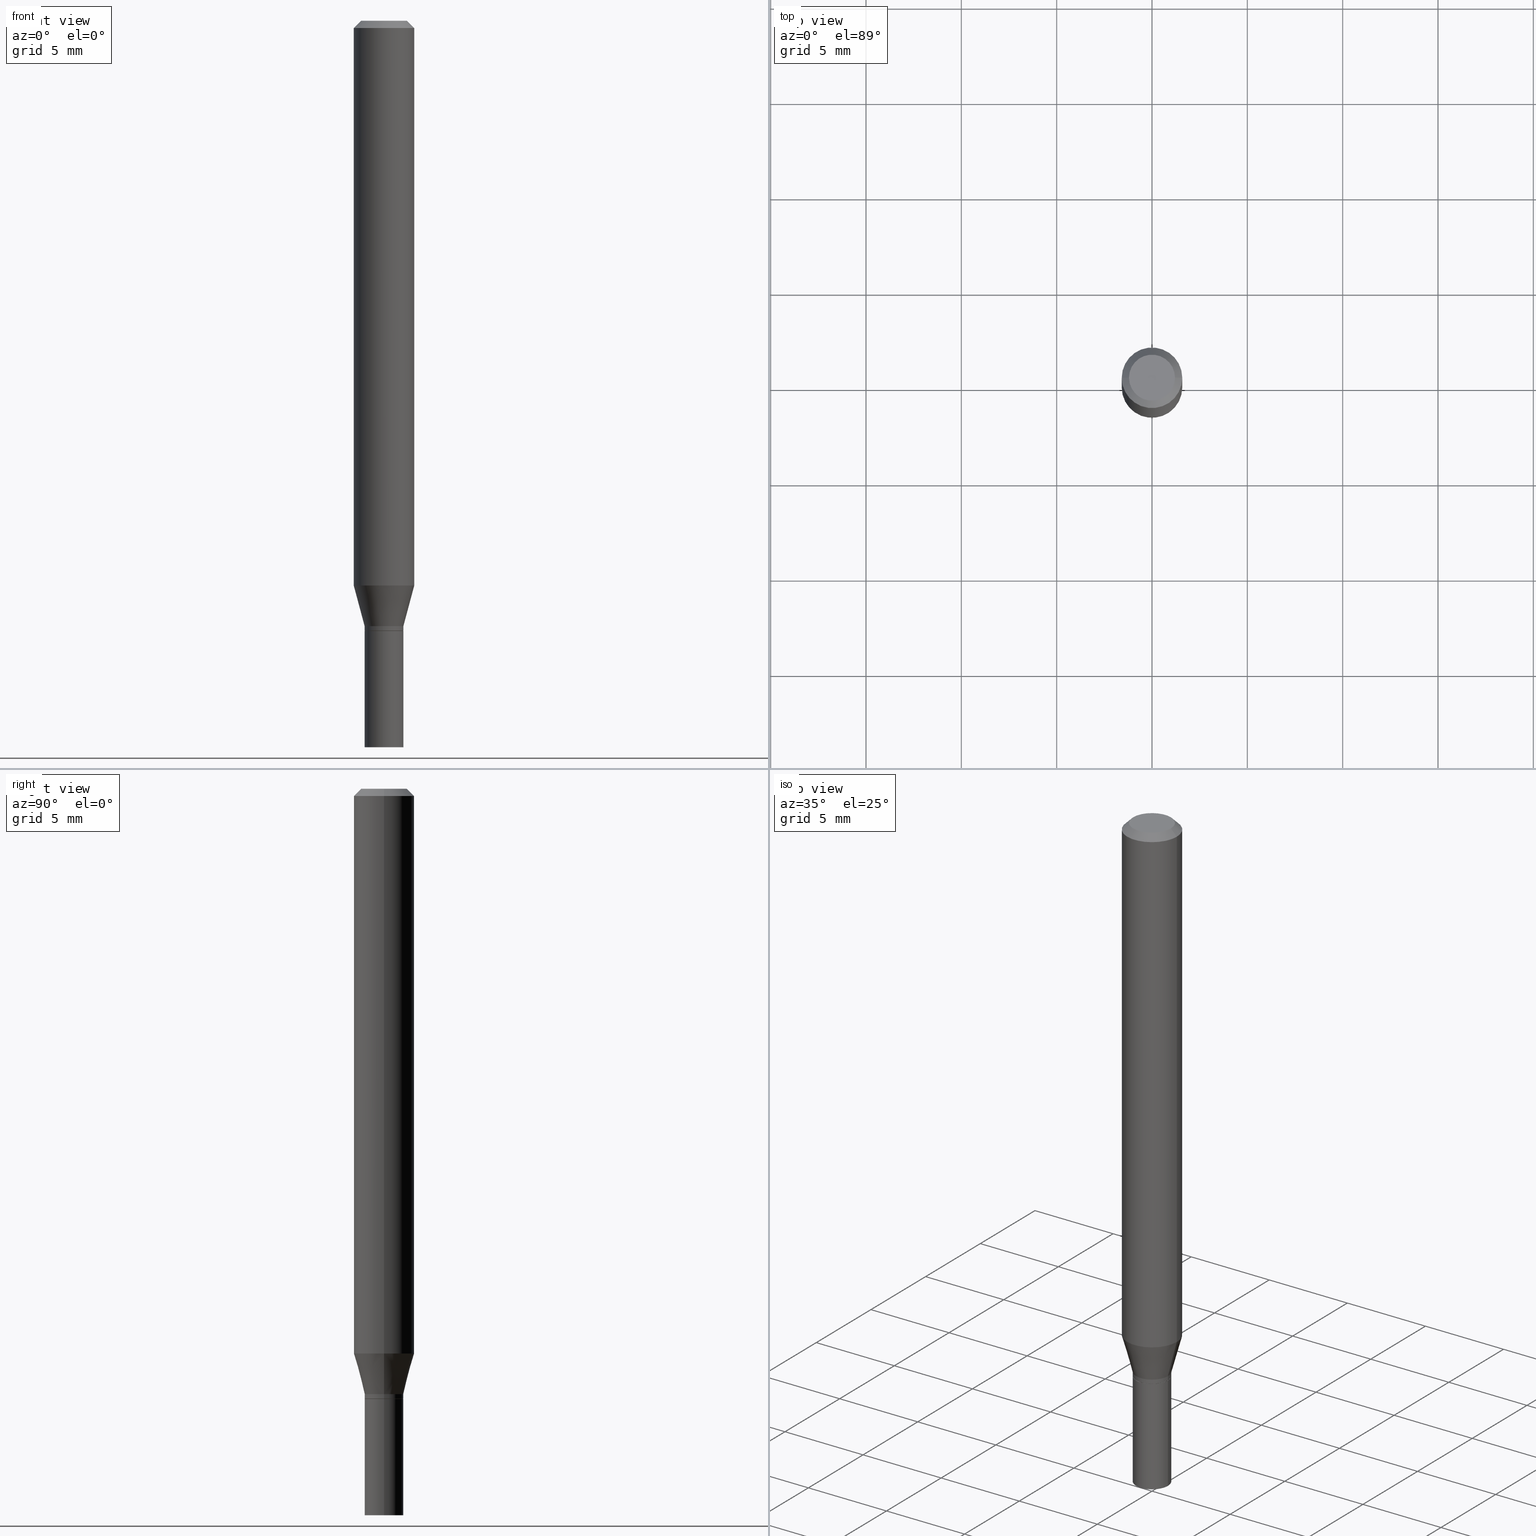
[diagram: canonical four-view strip — front | top / right | iso, engineering-drawing reading convention]
A machine part, canonical four-view strip (front | top / right | iso — engineering-drawing reading convention). The complete STEP part file that produces these views, byte-faithful:
ISO-10303-21;
HEADER;
FILE_DESCRIPTION (( 'STEP AP203' ),
    '1' );
FILE_NAME ('02460.STEP',
    '2024-03-18T20:43:47',
    ( '' ),
    ( '' ),
    'SwSTEP 2.0',
    'SolidWorks 2023',
    '' );
FILE_SCHEMA (( 'CONFIG_CONTROL_DESIGN' ));
ENDSEC;

DATA;
#1 = PERSON_AND_ORGANIZATION_ROLE ( 'classification_officer' ) ;
#2 = PERSON ( 'UNSPECIFIED', 'UNSPECIFIED', 'UNSPECIFIED', ('UNSPECIFIED'), ('UNSPECIFIED'), ('UNSPECIFIED') ) ;
#3 = EDGE_LOOP ( 'NONE', ( #287, #20 ) ) ;
#4 = ADVANCED_FACE ( 'NONE', ( #329 ), #124, .T. ) ;
#5 = CARTESIAN_POINT ( 'NONE',  ( 0.000000000000000000, 0.000000000000000000, 0.000000000000000000 ) ) ;
#6 = PERSON_AND_ORGANIZATION_ROLE ( 'creator' ) ;
#7 = VERTEX_POINT ( 'NONE', #165 ) ;
#8 = AXIS2_PLACEMENT_3D ( 'NONE', #139, #195, #267 ) ;
#9 = AXIS2_PLACEMENT_3D ( 'NONE', #29, #198, #21 ) ;
#10 = PERSON_AND_ORGANIZATION_ROLE ( 'creator' ) ;
#11 = EDGE_CURVE ( 'NONE', #396, #47, #30, .T. ) ;
#12 = DIRECTION ( 'NONE',  ( 1.000000000000000000, -6.982962677686267499E-15, 4.852736867747366768E-29 ) ) ;
#13 = ORIENTED_EDGE ( 'NONE', *, *, #378, .T. ) ;
#14 = DIRECTION ( 'NONE',  ( 1.000000000000000000, -6.982962677686265133E-15, 0.000000000000000000 ) ) ;
#15 = FACE_OUTER_BOUND ( 'NONE', #455, .T. ) ;
#16 = VERTEX_POINT ( 'NONE', #59 ) ;
#17 = AXIS2_PLACEMENT_3D ( 'NONE', #69, #331, #159 ) ;
#18 = ORIENTED_EDGE ( 'NONE', *, *, #27, .F. ) ;
#19 = DIRECTION ( 'NONE',  ( -2.445468806185136597E-29, 3.491481338843145583E-15, 1.000000000000000000 ) ) ;
#20 = ORIENTED_EDGE ( 'NONE', *, *, #99, .T. ) ;
#21 = DIRECTION ( 'NONE',  ( 1.000000000000000000, -6.982962677686265133E-15, 0.000000000000000000 ) ) ;
#22 = LOCAL_TIME ( 16, 43, 47.00000000000000000, #116 ) ;
#23 = DIRECTION ( 'NONE',  ( 1.000000000000000000, -6.982962677686259611E-15, 0.000000000000000000 ) ) ;
#24 = PERSON_AND_ORGANIZATION_ROLE ( 'design_owner' ) ;
#25 = DIRECTION ( 'NONE',  ( 1.000000000000000000, -6.982962677686265922E-15, 4.876176775795935793E-29 ) ) ;
#26 = CARTESIAN_POINT ( 'NONE',  ( -0.04000000000000000083, 2.842170943040400803E-16, -1.967574036101962509E-30 ) ) ;
#27 = EDGE_CURVE ( 'NONE', #47, #396, #463, .T. ) ;
#28 = PRODUCT_RELATED_PRODUCT_CATEGORY ( 'detail', '', ( #241 ) ) ;
#29 = CARTESIAN_POINT ( 'NONE',  ( 3.056836007731421306E-29, -4.364351673553932471E-15, -1.250000000000000000 ) ) ;
#30 = CIRCLE ( 'NONE', #200, 0.04000000000000000083 ) ;
#31 = CONICAL_SURFACE ( 'NONE', #282, 0.03950000000000000039, 0.7853981633974739252 ) ;
#32 = APPROVAL_PERSON_ORGANIZATION ( #288, #171, #110 ) ;
#33 = PRODUCT_DEFINITION_SHAPE ( 'NONE', 'NONE',  #408 ) ;
#34 = FACE_OUTER_BOUND ( 'NONE', #135, .T. ) ;
#35 = DIRECTION ( 'NONE',  ( 2.438088387897960049E-29, -3.491481338843145188E-15, -1.000000000000000000 ) ) ;
#36 = CYLINDRICAL_SURFACE ( 'NONE', #230, 0.06250000000000000000 ) ;
#37 = CARTESIAN_POINT ( 'NONE',  ( 2.851487196488746564E-29, -4.071167994173503933E-15, -1.166028856829700144 ) ) ;
#38 = DIRECTION ( 'NONE',  ( 1.000000000000000000, -6.982962677686266711E-15, 0.000000000000000000 ) ) ;
#39 = EDGE_CURVE ( 'NONE', #16, #119, #112, .T. ) ;
#40 = EDGE_CURVE ( 'NONE', #143, #47, #447, .T. ) ;
#41 = ORIENTED_EDGE ( 'NONE', *, *, #53, .F. ) ;
#42 = VERTEX_POINT ( 'NONE', #57 ) ;
#43 = AXIS2_PLACEMENT_3D ( 'NONE', #235, #409, #359 ) ;
#44 = CALENDAR_DATE ( 2024, 18, 3 ) ;
#45 = EDGE_LOOP ( 'NONE', ( #208, #452, #75, #197 ) ) ;
#46 = DIRECTION ( 'NONE',  ( -2.438088387897960049E-29, 3.491481338843145188E-15, 1.000000000000000000 ) ) ;
#47 = VERTEX_POINT ( 'NONE', #360 ) ;
#48 = EDGE_CURVE ( 'NONE', #143, #42, #51, .T. ) ;
#49 = CALENDAR_DATE ( 2024, 18, 3 ) ;
#50 = EDGE_LOOP ( 'NONE', ( #439, #148, #183, #332 ) ) ;
#51 = CIRCLE ( 'NONE', #295, 0.04000000000000000083 ) ;
#52 = ORIENTED_EDGE ( 'NONE', *, *, #210, .F. ) ;
#53 = EDGE_CURVE ( 'NONE', #7, #229, #369, .T. ) ;
#54 = DIRECTION ( 'NONE',  ( -2.445468806185136597E-29, 3.491481338843145583E-15, 1.000000000000000000 ) ) ;
#55 = ORIENTED_EDGE ( 'NONE', *, *, #257, .F. ) ;
#56 = SECURITY_CLASSIFICATION ( '', '', #431 ) ;
#57 = CARTESIAN_POINT ( 'NONE',  ( 0.04000000000000000083, -5.516540515372169003E-15, -1.500000000000000222 ) ) ;
#58 = PLANE ( 'NONE',  #83 ) ;
#59 = CARTESIAN_POINT ( 'NONE',  ( -0.04749999999999999362, 3.578768372314206562E-16, -2.310480929501438287E-16 ) ) ;
#60 = CARTESIAN_POINT ( 'NONE',  ( 0.06250000000000000000, -4.364351673553916694E-16, 3.047610484872459871E-30 ) ) ;
#61 = DIRECTION ( 'NONE',  ( -2.445468806185136877E-29, 3.491481338843145188E-15, 1.000000000000000000 ) ) ;
#62 = LINE ( 'NONE', #201, #244 ) ;
#63 = CARTESIAN_POINT ( 'NONE',  ( 0.000000000000000000, 0.000000000000000000, 0.000000000000000000 ) ) ;
#64 = VECTOR ( 'NONE', #281, 39.37007874015748143 ) ;
#65 = AXIS2_PLACEMENT_3D ( 'NONE', #5, #252, #398 ) ;
#66 = DIRECTION ( 'NONE',  ( 2.438088387897960049E-29, -3.491481338843145188E-15, -1.000000000000000000 ) ) ;
#67 = LINE ( 'NONE', #376, #464 ) ;
#68 = CARTESIAN_POINT ( 'NONE',  ( 3.668203209277704895E-29, -5.237222008264718177E-15, -1.500000000000000222 ) ) ;
#69 = CARTESIAN_POINT ( 'NONE',  ( 3.080067961390180050E-29, -4.397520746272943406E-15, -1.259500000000000286 ) ) ;
#70 = DIRECTION ( 'NONE',  ( 1.000000000000000000, -6.982962677686265922E-15, 4.876176775795935793E-29 ) ) ;
#71 = DIRECTION ( 'NONE',  ( 1.000000000000000000, -6.982962677686273021E-15, 0.000000000000000000 ) ) ;
#72 = CARTESIAN_POINT ( 'NONE',  ( 3.668203209277705088E-31, -5.237222008264718399E-17, -0.01499999999999999944 ) ) ;
#73 = CIRCLE ( 'NONE', #458, 0.06250000000000000000 ) ;
#74 = CC_DESIGN_APPROVAL ( #349, ( #56 ) ) ;
#75 = ORIENTED_EDGE ( 'NONE', *, *, #254, .F. ) ;
#76 = EDGE_CURVE ( 'NONE', #229, #119, #236, .T. ) ;
#77 = ORIENTED_EDGE ( 'NONE', *, *, #206, .F. ) ;
#78 = FACE_OUTER_BOUND ( 'NONE', #118, .T. ) ;
#79 = MANIFOLD_SOLID_BREP ( 'Body-Move/Copy2[2]', #390 ) ;
#80 = PERSON_AND_ORGANIZATION_ROLE ( 'design_supplier' ) ;
#81 = ADVANCED_FACE ( 'NONE', ( #365 ), #100, .F. ) ;
#82 = ORIENTED_EDGE ( 'NONE', *, *, #441, .F. ) ;
#83 = AXIS2_PLACEMENT_3D ( 'NONE', #196, #35, #438 ) ;
#84 = EDGE_CURVE ( 'NONE', #119, #345, #442, .T. ) ;
#85 = ORIENTED_EDGE ( 'NONE', *, *, #254, .T. ) ;
#86 = ORIENTED_EDGE ( 'NONE', *, *, #154, .F. ) ;
#87 = DATE_TIME_ROLE ( 'classification_date' ) ;
#88 = EDGE_LOOP ( 'NONE', ( #55, #348, #313, #361 ) ) ;
#89 = AXIS2_PLACEMENT_3D ( 'NONE', #453, #19, #297 ) ;
#90 = AXIS2_PLACEMENT_3D ( 'NONE', #220, #310, #424 ) ;
#91 = CARTESIAN_POINT ( 'NONE',  ( 0.000000000000000000, 0.000000000000000000, 0.000000000000000000 ) ) ;
#92 = CARTESIAN_POINT ( 'NONE',  ( 0.000000000000000000, 0.000000000000000000, 0.000000000000000000 ) ) ;
#93 = CYLINDRICAL_SURFACE ( 'NONE', #114, 0.06250000000000000000 ) ;
#94 = ORIENTED_EDGE ( 'NONE', *, *, #292, .T. ) ;
#95 = FACE_OUTER_BOUND ( 'NONE', #3, .T. ) ;
#96 = ADVANCED_FACE ( 'NONE', ( #78 ), #217, .F. ) ;
#97 = ORIENTED_EDGE ( 'NONE', *, *, #48, .F. ) ;
#98 = ORIENTED_EDGE ( 'NONE', *, *, #322, .F. ) ;
#99 = EDGE_CURVE ( 'NONE', #372, #16, #172, .T. ) ;
#100 = PLANE ( 'NONE',  #176 ) ;
#101 = PERSON_AND_ORGANIZATION ( #2, #339 ) ;
#102 = VECTOR ( 'NONE', #305, 39.37007874015748143 ) ;
#103 = DIRECTION ( 'NONE',  ( -2.445468806185136877E-29, 3.491481338843145188E-15, 1.000000000000000000 ) ) ;
#104 = CARTESIAN_POINT ( 'NONE',  ( 3.081290695793272291E-29, -4.399266486942364120E-15, -1.260000000000000231 ) ) ;
#105 = DIRECTION ( 'NONE',  ( 2.445468806185136597E-29, -3.491481338843145583E-15, -1.000000000000000000 ) ) ;
#106 = DIRECTION ( 'NONE',  ( -1.000000000000000000, 6.982962677686266711E-15, 0.000000000000000000 ) ) ;
#107 = DIRECTION ( 'NONE',  ( -2.445468806185136877E-29, 3.491481338843145188E-15, 1.000000000000000000 ) ) ;
#108 = CIRCLE ( 'NONE', #403, 0.03950000000000000039 ) ;
#109 = ADVANCED_BREP_SHAPE_REPRESENTATION ( '02460', ( #227, #79, #65 ), #393 ) ;
#110 = APPROVAL_ROLE ( '' ) ;
#111 = ORIENTED_EDGE ( 'NONE', *, *, #407, .T. ) ;
#112 = LINE ( 'NONE', #280, #449 ) ;
#113 = CALENDAR_DATE ( 2024, 18, 3 ) ;
#114 = AXIS2_PLACEMENT_3D ( 'NONE', #436, #151, #394 ) ;
#115 = EDGE_LOOP ( 'NONE', ( #134, #400, #185, #416 ) ) ;
#116 = COORDINATED_UNIVERSAL_TIME_OFFSET ( 5, 0, .BEHIND. ) ;
#117 = DIRECTION ( 'NONE',  ( -2.445468806185136597E-29, 3.491481338843145583E-15, 1.000000000000000000 ) ) ;
#118 = EDGE_LOOP ( 'NONE', ( #367, #97 ) ) ;
#119 = VERTEX_POINT ( 'NONE', #145 ) ;
#120 = APPROVAL_ROLE ( '' ) ;
#121 = FACE_OUTER_BOUND ( 'NONE', #88, .T. ) ;
#122 = FACE_OUTER_BOUND ( 'NONE', #157, .T. ) ;
#123 = PERSON_AND_ORGANIZATION ( #2, #339 ) ;
#124 = CONICAL_SURFACE ( 'NONE', #189, 0.03950000000000000039, 0.7853981633974739252 ) ;
#125 = FACE_OUTER_BOUND ( 'NONE', #466, .T. ) ;
#126 = ADVANCED_FACE ( 'NONE', ( #246 ), #450, .T. ) ;
#127 = UNCERTAINTY_MEASURE_WITH_UNIT (LENGTH_MEASURE( 1.000000000000000082E-05 ), #147, 'distance_accuracy_value', 'NONE');
#128 = EDGE_CURVE ( 'NONE', #334, #430, #385, .T. ) ;
#129 = LINE ( 'NONE', #258, #268 ) ;
#130 = DIRECTION ( 'NONE',  ( 1.000000000000000000, -6.982962677686266711E-15, 4.876176775795935232E-29 ) ) ;
#131 = ORIENTED_EDGE ( 'NONE', *, *, #337, .F. ) ;
#132 = APPROVAL_PERSON_ORGANIZATION ( #123, #349, #120 ) ;
#133 = CARTESIAN_POINT ( 'NONE',  ( 0.000000000000000000, 0.000000000000000000, 0.000000000000000000 ) ) ;
#134 = ORIENTED_EDGE ( 'NONE', *, *, #158, .F. ) ;
#135 = EDGE_LOOP ( 'NONE', ( #146, #152, #13, #324 ) ) ;
#136 = DIRECTION ( 'NONE',  ( 1.000000000000000000, -6.982962677686262766E-15, 0.000000000000000000 ) ) ;
#137 = DIRECTION ( 'NONE',  ( -2.445468806185136597E-29, 3.491481338843145583E-15, 1.000000000000000000 ) ) ;
#138 = VERTEX_POINT ( 'NONE', #164 ) ;
#139 = CARTESIAN_POINT ( 'NONE',  ( 3.081290695793272291E-29, -4.399266486942364120E-15, -1.260000000000000231 ) ) ;
#140 = VECTOR ( 'NONE', #306, 39.37007874015748143 ) ;
#141 = DIRECTION ( 'NONE',  ( -2.445468806185136597E-29, 3.491481338843145583E-15, 1.000000000000000000 ) ) ;
#142 = CARTESIAN_POINT ( 'NONE',  ( 5.650209040381348270E-45, -8.067001049107153434E-31, -2.310480929501414128E-16 ) ) ;
#143 = VERTEX_POINT ( 'NONE', #298 ) ;
#144 = AXIS2_PLACEMENT_3D ( 'NONE', #104, #381, #212 ) ;
#145 = CARTESIAN_POINT ( 'NONE',  ( -0.06250000000000000000, -1.617680897278012890E-15, -0.01499999999999999944 ) ) ;
#146 = ORIENTED_EDGE ( 'NONE', *, *, #76, .F. ) ;
#147 =( CONVERSION_BASED_UNIT ( 'INCH', #222 ) LENGTH_UNIT ( ) NAMED_UNIT ( #419 ) );
#148 = ORIENTED_EDGE ( 'NONE', *, *, #191, .T. ) ;
#149 = CARTESIAN_POINT ( 'NONE',  ( 3.056836007731421306E-29, -4.364351673553932471E-15, -1.250000000000000000 ) ) ;
#150 = COORDINATED_UNIVERSAL_TIME_OFFSET ( 5, 0, .BEHIND. ) ;
#151 = DIRECTION ( 'NONE',  ( -2.445468806185136597E-29, 3.491481338843145583E-15, 1.000000000000000000 ) ) ;
#152 = ORIENTED_EDGE ( 'NONE', *, *, #206, .T. ) ;
#153 = CALENDAR_DATE ( 2024, 18, 3 ) ;
#154 = EDGE_CURVE ( 'NONE', #430, #138, #62, .T. ) ;
#155 = ORIENTED_EDGE ( 'NONE', *, *, #48, .T. ) ;
#156 = AXIS2_PLACEMENT_3D ( 'NONE', #72, #272, #106 ) ;
#157 = EDGE_LOOP ( 'NONE', ( #111, #262, #384, #319 ) ) ;
#158 = EDGE_CURVE ( 'NONE', #251, #255, #67, .T. ) ;
#159 = DIRECTION ( 'NONE',  ( 1.000000000000000000, -6.982962677686273021E-15, 0.000000000000000000 ) ) ;
#160 = EDGE_LOOP ( 'NONE', ( #314, #248 ) ) ;
#161 = CC_DESIGN_DATE_AND_TIME_ASSIGNMENT ( #343, #87, ( #56 ) ) ;
#162 = CARTESIAN_POINT ( 'NONE',  ( -0.06250000000000000000, 4.440892098500626162E-16, -3.074334431409316114E-30 ) ) ;
#163 = EDGE_CURVE ( 'NONE', #255, #430, #325, .T. ) ;
#164 = CARTESIAN_POINT ( 'NONE',  ( 0.03999999999999990369, -4.643670180661382509E-15, -1.250000000000000000 ) ) ;
#165 = CARTESIAN_POINT ( 'NONE',  ( 0.06250000000000000000, -4.507603161528894814E-15, -1.166028856829700144 ) ) ;
#166 = VECTOR ( 'NONE', #317, 39.37007874015748143 ) ;
#167 = CARTESIAN_POINT ( 'NONE',  ( 0.04000000000000000083, -4.678584994049814947E-15, -1.260000000000000231 ) ) ;
#168 = CARTESIAN_POINT ( 'NONE',  ( 3.668203209277704895E-29, -5.237222008264718177E-15, -1.500000000000000222 ) ) ;
#169 = DIRECTION ( 'NONE',  ( -2.445468806185136597E-29, 3.491481338843145583E-15, 1.000000000000000000 ) ) ;
#170 = DIRECTION ( 'NONE',  ( 1.000000000000000000, -6.982962677686266711E-15, 4.876176775795935793E-29 ) ) ;
#171 = APPROVAL ( #284, 'UNSPECIFIED' ) ;
#172 = CIRCLE ( 'NONE', #90, 0.04749999999999999362 ) ;
#173 = CARTESIAN_POINT ( 'NONE',  ( 0.06250000000000000000, -4.811533449433679005E-16, -0.01499999999999999944 ) ) ;
#174 = CARTESIAN_POINT ( 'NONE',  ( 0.03950000000000000039, -4.675093512710971939E-15, -1.260000000000000231 ) ) ;
#175 = DIRECTION ( 'NONE',  ( -2.445468806185136597E-29, 3.491481338843145583E-15, 1.000000000000000000 ) ) ;
#176 = AXIS2_PLACEMENT_3D ( 'NONE', #355, #66, #207 ) ;
#177 = CIRCLE ( 'NONE', #43, 0.03999999999999990369 ) ;
#178 = APPROVAL ( #373, 'UNSPECIFIED' ) ;
#179 = SHAPE_DEFINITION_REPRESENTATION ( #33, #109 ) ;
#180 = EDGE_LOOP ( 'NONE', ( #389, #155, #413, #18 ) ) ;
#181 = DIRECTION ( 'NONE',  ( 1.000000000000000000, -6.982962677686265922E-15, 4.876176775795935793E-29 ) ) ;
#182 = APPROVAL_DATE_TIME ( #286, #349 ) ;
#183 = ORIENTED_EDGE ( 'NONE', *, *, #337, .T. ) ;
#184 = ORIENTED_EDGE ( 'NONE', *, *, #249, .F. ) ;
#185 = ORIENTED_EDGE ( 'NONE', *, *, #128, .T. ) ;
#186 = CC_DESIGN_SECURITY_CLASSIFICATION ( #56, ( #233 ) ) ;
#187 = APPLICATION_PROTOCOL_DEFINITION ( 'international standard', 'config_control_design', 1994, #426 ) ;
#188 = PERSON_AND_ORGANIZATION ( #2, #339 ) ;
#189 = AXIS2_PLACEMENT_3D ( 'NONE', #193, #259, #410 ) ;
#190 = VECTOR ( 'NONE', #368, 39.37007874015748143 ) ;
#191 = EDGE_CURVE ( 'NONE', #372, #345, #213, .T. ) ;
#192 = CC_DESIGN_APPROVAL ( #178, ( #408 ) ) ;
#193 = CARTESIAN_POINT ( 'NONE',  ( 3.081290695793272291E-29, -4.399266486942364120E-15, -1.260000000000000231 ) ) ;
#194 = DESIGN_CONTEXT ( 'detailed design', #388, 'design' ) ;
#195 = DIRECTION ( 'NONE',  ( -2.445468806185136597E-29, 3.491481338843145583E-15, 1.000000000000000000 ) ) ;
#196 = CARTESIAN_POINT ( 'NONE',  ( 3.316907271900976096E-16, 0.04749999999999999362, -2.813694100701201521E-16 ) ) ;
#197 = ORIENTED_EDGE ( 'NONE', *, *, #128, .F. ) ;
#198 = DIRECTION ( 'NONE',  ( -2.445468806185136597E-29, 3.491481338843145583E-15, 1.000000000000000000 ) ) ;
#199 = ADVANCED_FACE ( 'NONE', ( #307 ), #383, .T. ) ;
#200 = AXIS2_PLACEMENT_3D ( 'NONE', #301, #169, #23 ) ;
#201 = CARTESIAN_POINT ( 'NONE',  ( 0.03999999999999991757, -2.793185071074500866E-16, 1.950470710318370183E-30 ) ) ;
#202 = CARTESIAN_POINT ( 'NONE',  ( -0.06250000000000000000, -3.627078784323441317E-15, -1.166028856829700144 ) ) ;
#203 = ORIENTED_EDGE ( 'NONE', *, *, #378, .F. ) ;
#204 = AXIS2_PLACEMENT_3D ( 'NONE', #344, #117, #440 ) ;
#205 = DIRECTION ( 'NONE',  ( 1.000000000000000000, -6.982962677686265133E-15, 0.000000000000000000 ) ) ;
#206 = EDGE_CURVE ( 'NONE', #229, #7, #73, .T. ) ;
#207 = DIRECTION ( 'NONE',  ( -1.000000000000000000, 6.982962677686265922E-15, -4.876176775795935793E-29 ) ) ;
#208 = ORIENTED_EDGE ( 'NONE', *, *, #278, .T. ) ;
#209 = DIRECTION ( 'NONE',  ( -2.445468806185136597E-29, 3.491481338843145583E-15, 1.000000000000000000 ) ) ;
#210 = EDGE_CURVE ( 'NONE', #138, #277, #427, .T. ) ;
#211 = DIRECTION ( 'NONE',  ( -0.7071067811865656694, 7.493145998870420424E-15, 0.7071067811865294761 ) ) ;
#212 = DIRECTION ( 'NONE',  ( 1.000000000000000000, -6.982962677686271444E-15, 0.000000000000000000 ) ) ;
#213 = LINE ( 'NONE', #173, #102 ) ;
#214 = AXIS2_PLACEMENT_3D ( 'NONE', #374, #105, #422 ) ;
#215 = ORIENTED_EDGE ( 'NONE', *, *, #465, .T. ) ;
#216 = DIRECTION ( 'NONE',  ( 1.000000000000000000, -6.982962677686265922E-15, 4.876176775795935793E-29 ) ) ;
#217 = PLANE ( 'NONE',  #328 ) ;
#218 = ADVANCED_FACE ( 'NONE', ( #330 ), #434, .F. ) ;
#219 = CARTESIAN_POINT ( 'NONE',  ( -0.03999999999999990369, -3.853606681786667125E-15, -1.250000000000000000 ) ) ;
#220 = CARTESIAN_POINT ( 'NONE',  ( 5.650209040381348270E-45, -8.067001049107153434E-31, -2.310480929501414128E-16 ) ) ;
#221 = PERSON_AND_ORGANIZATION ( #2, #339 ) ;
#222 = LENGTH_MEASURE_WITH_UNIT ( LENGTH_MEASURE( 0.02539999999999999897 ), #364 );
#223 = ORIENTED_EDGE ( 'NONE', *, *, #249, .T. ) ;
#224 = PERSON_AND_ORGANIZATION ( #2, #339 ) ;
#225 = DIRECTION ( 'NONE',  ( -2.445468806185136597E-29, 3.491481338843145583E-15, 1.000000000000000000 ) ) ;
#226 = EDGE_LOOP ( 'NONE', ( #274, #98, #318, #353 ) ) ;
#227 = MANIFOLD_SOLID_BREP ( 'Body-Move/Copy2[1]', #379 ) ;
#228 = APPROVAL_DATE_TIME ( #404, #171 ) ;
#229 = VERTEX_POINT ( 'NONE', #202 ) ;
#230 = AXIS2_PLACEMENT_3D ( 'NONE', #414, #137, #170 ) ;
#231 = LOCAL_TIME ( 16, 43, 47.00000000000000000, #150 ) ;
#232 = DIRECTION ( 'NONE',  ( -2.445468806185136597E-29, 3.491481338843145583E-15, 1.000000000000000000 ) ) ;
#233 = PRODUCT_DEFINITION_FORMATION_WITH_SPECIFIED_SOURCE ( 'ANY', '', #241, .NOT_KNOWN. ) ;
#234 = DIRECTION ( 'NONE',  ( -2.445468806185136597E-29, 3.491481338843145583E-15, 1.000000000000000000 ) ) ;
#235 = CARTESIAN_POINT ( 'NONE',  ( 3.056836007731421306E-29, -4.364351673553932471E-15, -1.250000000000000000 ) ) ;
#236 = LINE ( 'NONE', #162, #309 ) ;
#237 = FACE_OUTER_BOUND ( 'NONE', #432, .T. ) ;
#238 = PERSON_AND_ORGANIZATION ( #2, #339 ) ;
#239 = LINE ( 'NONE', #347, #166 ) ;
#240 = CONICAL_SURFACE ( 'NONE', #276, 0.03999999999999990369, 0.2617993877991497409 ) ;
#241 = PRODUCT ( '02460', '02460', '', ( #351 ) ) ;
#242 = COORDINATED_UNIVERSAL_TIME_OFFSET ( 5, 0, .BEHIND. ) ;
#243 = VECTOR ( 'NONE', #417, 39.37007874015748143 ) ;
#244 = VECTOR ( 'NONE', #103, 39.37007874015748143 ) ;
#245 = ADVANCED_FACE ( 'NONE', ( #95 ), #58, .F. ) ;
#246 = FACE_OUTER_BOUND ( 'NONE', #226, .T. ) ;
#247 = APPROVAL_STATUS ( 'not_yet_approved' ) ;
#248 = ORIENTED_EDGE ( 'NONE', *, *, #27, .T. ) ;
#249 = EDGE_CURVE ( 'NONE', #277, #229, #290, .T. ) ;
#250 = AXIS2_PLACEMENT_3D ( 'NONE', #457, #54, #38 ) ;
#251 = VERTEX_POINT ( 'NONE', #266 ) ;
#252 = DIRECTION ( 'NONE',  ( 0.000000000000000000, 0.000000000000000000, 1.000000000000000000 ) ) ;
#253 = CARTESIAN_POINT ( 'NONE',  ( 0.06250000000000000000, -4.888073874380388472E-16, -0.01499999999999999944 ) ) ;
#254 = EDGE_CURVE ( 'NONE', #430, #255, #421, .T. ) ;
#255 = VERTEX_POINT ( 'NONE', #294 ) ;
#256 = CYLINDRICAL_SURFACE ( 'NONE', #311, 0.03999999999999991757 ) ;
#257 = EDGE_CURVE ( 'NONE', #255, #277, #129, .T. ) ;
#258 = CARTESIAN_POINT ( 'NONE',  ( -0.03999999999999991757, 2.842170943040394886E-16, -1.967574036101958305E-30 ) ) ;
#259 = DIRECTION ( 'NONE',  ( -2.445468806185136597E-29, 3.491481338843145583E-15, 1.000000000000000000 ) ) ;
#260 = CIRCLE ( 'NONE', #380, 0.04000000000000000083 ) ;
#261 = DIRECTION ( 'NONE',  ( -2.445468806185136597E-29, 3.491481338843145583E-15, 1.000000000000000000 ) ) ;
#262 = ORIENTED_EDGE ( 'NONE', *, *, #40, .T. ) ;
#263 = CARTESIAN_POINT ( 'NONE',  ( 3.056836007731421306E-29, -4.364351673553932471E-15, -1.250000000000000000 ) ) ;
#264 = LINE ( 'NONE', #60, #190 ) ;
#265 = ORIENTED_EDGE ( 'NONE', *, *, #278, .F. ) ;
#266 = CARTESIAN_POINT ( 'NONE',  ( -0.03950000000000000039, -4.115952879143014280E-15, -1.260000000000000231 ) ) ;
#267 = DIRECTION ( 'NONE',  ( 1.000000000000000000, -6.982962677686259611E-15, 0.000000000000000000 ) ) ;
#268 = VECTOR ( 'NONE', #61, 39.37007874015748143 ) ;
#269 = DIRECTION ( 'NONE',  ( -2.445468806185136597E-29, 3.491481338843145583E-15, 1.000000000000000000 ) ) ;
#270 = CARTESIAN_POINT ( 'NONE',  ( 0.04000000000000000083, -2.793185071074506290E-16, 1.950470710318374387E-30 ) ) ;
#271 = APPROVAL_ROLE ( '' ) ;
#272 = DIRECTION ( 'NONE',  ( 2.445468806185136597E-29, -3.491481338843145583E-15, -1.000000000000000000 ) ) ;
#273 = CC_DESIGN_PERSON_AND_ORGANIZATION_ASSIGNMENT ( #221, #80, ( #233 ) ) ;
#274 = ORIENTED_EDGE ( 'NONE', *, *, #191, .F. ) ;
#275 = CARTESIAN_POINT ( 'NONE',  ( 3.081290695793272291E-29, -4.399266486942364120E-15, -1.260000000000000231 ) ) ;
#276 = AXIS2_PLACEMENT_3D ( 'NONE', #149, #320, #14 ) ;
#277 = VERTEX_POINT ( 'NONE', #219 ) ;
#278 = EDGE_CURVE ( 'NONE', #334, #251, #392, .T. ) ;
#279 = ORIENTED_EDGE ( 'NONE', *, *, #210, .T. ) ;
#280 = CARTESIAN_POINT ( 'NONE',  ( -0.06250000000000000000, 3.840629472727444916E-16, -0.01499999999999999944 ) ) ;
#281 = DIRECTION ( 'NONE',  ( -0.2588190451025210725, 5.211531920934548675E-15, 0.9659258262890682012 ) ) ;
#282 = AXIS2_PLACEMENT_3D ( 'NONE', #299, #451, #366 ) ;
#283 = ADVANCED_FACE ( 'NONE', ( #34 ), #36, .T. ) ;
#284 = APPROVAL_STATUS ( 'not_yet_approved' ) ;
#285 = ORIENTED_EDGE ( 'NONE', *, *, #257, .T. ) ;
#286 = DATE_AND_TIME ( #153, #22 ) ;
#287 = ORIENTED_EDGE ( 'NONE', *, *, #322, .T. ) ;
#288 = PERSON_AND_ORGANIZATION ( #2, #339 ) ;
#289 = DATE_AND_TIME ( #113, #459 ) ;
#290 = LINE ( 'NONE', #323, #64 ) ;
#291 = ADVANCED_FACE ( 'NONE', ( #425 ), #31, .T. ) ;
#292 = EDGE_CURVE ( 'NONE', #138, #7, #239, .T. ) ;
#293 = ORIENTED_EDGE ( 'NONE', *, *, #292, .F. ) ;
#294 = CARTESIAN_POINT ( 'NONE',  ( -0.03999999999999992450, -4.113303651968903868E-15, -1.259500000000000286 ) ) ;
#295 = AXIS2_PLACEMENT_3D ( 'NONE', #168, #261, #327 ) ;
#296 = AXIS2_PLACEMENT_3D ( 'NONE', #263, #418, #205 ) ;
#297 = DIRECTION ( 'NONE',  ( 1.000000000000000000, -6.982962677686262766E-15, 0.000000000000000000 ) ) ;
#298 = CARTESIAN_POINT ( 'NONE',  ( -0.04000000000000000083, -4.534027153299501216E-15, -1.500000000000000222 ) ) ;
#299 = CARTESIAN_POINT ( 'NONE',  ( 3.081290695793272291E-29, -4.399266486942364120E-15, -1.260000000000000231 ) ) ;
#300 = DIRECTION ( 'NONE',  ( -2.438088387897960049E-29, 3.491481338843145188E-15, 1.000000000000000000 ) ) ;
#301 = CARTESIAN_POINT ( 'NONE',  ( 3.081290695793272291E-29, -4.399266486942364120E-15, -1.260000000000000231 ) ) ;
#302 = CC_DESIGN_PERSON_AND_ORGANIZATION_ASSIGNMENT ( #429, #6, ( #408 ) ) ;
#303 = CONICAL_SURFACE ( 'NONE', #9, 0.03999999999999990369, 0.2617993877991497409 ) ;
#304 = CARTESIAN_POINT ( 'NONE',  ( 3.080067961390180050E-29, -4.397520746272943406E-15, -1.259500000000000286 ) ) ;
#305 = DIRECTION ( 'NONE',  ( 0.7071067811865530128, -7.319954787623274978E-15, -0.7071067811865420216 ) ) ;
#306 = DIRECTION ( 'NONE',  ( 0.7071067811865656694, -2.468850131082446387E-15, 0.7071067811865294761 ) ) ;
#307 = FACE_OUTER_BOUND ( 'NONE', #180, .T. ) ;
#308 = EDGE_CURVE ( 'NONE', #42, #396, #461, .T. ) ;
#309 = VECTOR ( 'NONE', #371, 39.37007874015748143 ) ;
#310 = DIRECTION ( 'NONE',  ( -2.445468806185136597E-29, 3.491481338843145583E-15, 1.000000000000000000 ) ) ;
#311 = AXIS2_PLACEMENT_3D ( 'NONE', #92, #232, #352 ) ;
#312 =( NAMED_UNIT ( * ) SI_UNIT ( $, .STERADIAN. ) SOLID_ANGLE_UNIT ( ) );
#313 = ORIENTED_EDGE ( 'NONE', *, *, #154, .T. ) ;
#314 = ORIENTED_EDGE ( 'NONE', *, *, #11, .T. ) ;
#315 = AXIS2_PLACEMENT_3D ( 'NONE', #275, #300, #70 ) ;
#316 = APPROVAL_DATE_TIME ( #289, #178 ) ;
#317 = DIRECTION ( 'NONE',  ( 0.2588190451025210725, 1.565188264969624137E-15, 0.9659258262890682012 ) ) ;
#318 = ORIENTED_EDGE ( 'NONE', *, *, #39, .T. ) ;
#319 = ORIENTED_EDGE ( 'NONE', *, *, #308, .F. ) ;
#320 = DIRECTION ( 'NONE',  ( -2.445468806185136597E-29, 3.491481338843145583E-15, 1.000000000000000000 ) ) ;
#321 = DATE_TIME_ROLE ( 'creation_date' ) ;
#322 = EDGE_CURVE ( 'NONE', #16, #372, #335, .T. ) ;
#323 = CARTESIAN_POINT ( 'NONE',  ( -0.03999999999999990369, -4.080134579249892933E-15, -1.250000000000000000 ) ) ;
#324 = ORIENTED_EDGE ( 'NONE', *, *, #84, .F. ) ;
#325 = CIRCLE ( 'NONE', #433, 0.03999999999999992450 ) ;
#326 = CC_DESIGN_DATE_AND_TIME_ASSIGNMENT ( #399, #321, ( #408 ) ) ;
#327 = DIRECTION ( 'NONE',  ( 1.000000000000000000, -6.982962677686259611E-15, 0.000000000000000000 ) ) ;
#328 = AXIS2_PLACEMENT_3D ( 'NONE', #341, #46, #181 ) ;
#329 = FACE_OUTER_BOUND ( 'NONE', #115, .T. ) ;
#330 = FACE_OUTER_BOUND ( 'NONE', #356, .T. ) ;
#331 = DIRECTION ( 'NONE',  ( -2.445468806185136597E-29, 3.491481338843145583E-15, 1.000000000000000000 ) ) ;
#332 = ORIENTED_EDGE ( 'NONE', *, *, #39, .F. ) ;
#333 = FACE_OUTER_BOUND ( 'NONE', #50, .T. ) ;
#334 = VERTEX_POINT ( 'NONE', #406 ) ;
#335 = CIRCLE ( 'NONE', #443, 0.04749999999999999362 ) ;
#336 = ADVANCED_FACE ( 'NONE', ( #15 ), #93, .T. ) ;
#337 = EDGE_CURVE ( 'NONE', #345, #119, #391, .T. ) ;
#338 = VECTOR ( 'NONE', #107, 39.37007874015748143 ) ;
#339 = ORGANIZATION ( 'UNSPECIFIED', 'UNSPECIFIED', '' ) ;
#340 = EDGE_LOOP ( 'NONE', ( #279, #223, #41, #293 ) ) ;
#341 = CARTESIAN_POINT ( 'NONE',  ( 3.576687321579069994E-29, -5.368277968210015545E-15, -1.500000000000000222 ) ) ;
#342 = DIRECTION ( 'NONE',  ( 1.000000000000000000, -6.982962677686259611E-15, 0.000000000000000000 ) ) ;
#343 = DATE_AND_TIME ( #49, #428 ) ;
#344 = CARTESIAN_POINT ( 'NONE',  ( 3.668203209277705088E-31, -5.237222008264718399E-17, -0.01499999999999999944 ) ) ;
#345 = VERTEX_POINT ( 'NONE', #253 ) ;
#346 = CALENDAR_DATE ( 2024, 18, 3 ) ;
#347 = CARTESIAN_POINT ( 'NONE',  ( 0.03999999999999990369, -4.643670180661382509E-15, -1.250000000000000000 ) ) ;
#348 = ORIENTED_EDGE ( 'NONE', *, *, #163, .T. ) ;
#349 = APPROVAL ( #247, 'UNSPECIFIED' ) ;
#350 = AXIS2_PLACEMENT_3D ( 'NONE', #91, #423, #25 ) ;
#351 = MECHANICAL_CONTEXT ( 'NONE', #426, 'mechanical' ) ;
#352 = DIRECTION ( 'NONE',  ( 1.000000000000000000, -6.982962677686266711E-15, 4.876176775795935232E-29 ) ) ;
#353 = ORIENTED_EDGE ( 'NONE', *, *, #84, .T. ) ;
#354 = ADVANCED_FACE ( 'NONE', ( #121 ), #256, .T. ) ;
#355 = CARTESIAN_POINT ( 'NONE',  ( 2.793185071074814439E-16, 0.03999999999999560157, -1.260000000000000453 ) ) ;
#356 = EDGE_LOOP ( 'NONE', ( #265, #82 ) ) ;
#357 = AXIS2_PLACEMENT_3D ( 'NONE', #63, #462, #216 ) ;
#358 = DIRECTION ( 'NONE',  ( 1.000000000000000000, -6.982962677686271444E-15, 0.000000000000000000 ) ) ;
#359 = DIRECTION ( 'NONE',  ( 1.000000000000000000, -6.982962677686265133E-15, 0.000000000000000000 ) ) ;
#360 = CARTESIAN_POINT ( 'NONE',  ( -0.04000000000000000083, -4.534027153299501216E-15, -1.260000000000000231 ) ) ;
#361 = ORIENTED_EDGE ( 'NONE', *, *, #465, .F. ) ;
#362 = ADVANCED_FACE ( 'NONE', ( #333 ), #411, .T. ) ;
#363 = CARTESIAN_POINT ( 'NONE',  ( 0.04749999999999999362, -4.035134999187582567E-16, -2.310480929501388490E-16 ) ) ;
#364 =( LENGTH_UNIT ( ) NAMED_UNIT ( * ) SI_UNIT ( $, .METRE. ) );
#365 = FACE_OUTER_BOUND ( 'NONE', #160, .T. ) ;
#366 = DIRECTION ( 'NONE',  ( 1.000000000000000000, -6.982962677686271444E-15, 0.000000000000000000 ) ) ;
#367 = ORIENTED_EDGE ( 'NONE', *, *, #407, .F. ) ;
#368 = DIRECTION ( 'NONE',  ( -2.445468806185136877E-29, 3.491481338843145188E-15, 1.000000000000000000 ) ) ;
#369 = CIRCLE ( 'NONE', #89, 0.06250000000000000000 ) ;
#370 = AXIS2_PLACEMENT_3D ( 'NONE', #133, #234, #130 ) ;
#371 = DIRECTION ( 'NONE',  ( -2.445468806185136877E-29, 3.491481338843145188E-15, 1.000000000000000000 ) ) ;
#372 = VERTEX_POINT ( 'NONE', #363 ) ;
#373 = APPROVAL_STATUS ( 'not_yet_approved' ) ;
#374 = CARTESIAN_POINT ( 'NONE',  ( 3.668203209277705088E-31, -5.237222008264718399E-17, -0.01499999999999999944 ) ) ;
#375 = CARTESIAN_POINT ( 'NONE',  ( 0.03999999999999992450, -4.676839253380393443E-15, -1.259500000000000286 ) ) ;
#376 = CARTESIAN_POINT ( 'NONE',  ( -0.03950000000000000039, -4.118602106317124692E-15, -1.260000000000000231 ) ) ;
#377 = CC_DESIGN_PERSON_AND_ORGANIZATION_ASSIGNMENT ( #101, #24, ( #241 ) ) ;
#378 = EDGE_CURVE ( 'NONE', #7, #345, #264, .T. ) ;
#379 = CLOSED_SHELL ( 'NONE', ( #420, #96, #199, #81 ) ) ;
#380 = AXIS2_PLACEMENT_3D ( 'NONE', #68, #209, #342 ) ;
#381 = DIRECTION ( 'NONE',  ( -2.445468806185136597E-29, 3.491481338843145583E-15, 1.000000000000000000 ) ) ;
#382 = CC_DESIGN_APPROVAL ( #171, ( #233 ) ) ;
#383 = CYLINDRICAL_SURFACE ( 'NONE', #357, 0.04000000000000000083 ) ;
#384 = ORIENTED_EDGE ( 'NONE', *, *, #11, .F. ) ;
#385 = LINE ( 'NONE', #174, #140 ) ;
#386 = ADVANCED_FACE ( 'NONE', ( #456 ), #303, .T. ) ;
#387 = COORDINATED_UNIVERSAL_TIME_OFFSET ( 5, 0, .BEHIND. ) ;
#388 = APPLICATION_CONTEXT ( 'configuration controlled 3d designs of mechanical parts and assemblies' ) ;
#389 = ORIENTED_EDGE ( 'NONE', *, *, #40, .F. ) ;
#390 = CLOSED_SHELL ( 'NONE', ( #445, #291, #362, #336, #386, #415, #283, #126, #245, #218, #4, #354 ) ) ;
#391 = CIRCLE ( 'NONE', #204, 0.06250000000000000000 ) ;
#392 = CIRCLE ( 'NONE', #144, 0.03950000000000000039 ) ;
#393 =( GEOMETRIC_REPRESENTATION_CONTEXT ( 3 ) GLOBAL_UNCERTAINTY_ASSIGNED_CONTEXT ( ( #127 ) ) GLOBAL_UNIT_ASSIGNED_CONTEXT ( ( #147, #395, #312 ) ) REPRESENTATION_CONTEXT ( 'NONE', 'WORKASPACE' ) );
#394 = DIRECTION ( 'NONE',  ( 1.000000000000000000, -6.982962677686266711E-15, 4.876176775795935793E-29 ) ) ;
#395 =( NAMED_UNIT ( * ) PLANE_ANGLE_UNIT ( ) SI_UNIT ( $, .RADIAN. ) );
#396 = VERTEX_POINT ( 'NONE', #167 ) ;
#397 = DIRECTION ( 'NONE',  ( -0.7071067811865530128, 2.468850131082314253E-15, -0.7071067811865420216 ) ) ;
#398 = DIRECTION ( 'NONE',  ( 1.000000000000000000, 0.000000000000000000, 0.000000000000000000 ) ) ;
#399 = DATE_AND_TIME ( #44, #405 ) ;
#400 = ORIENTED_EDGE ( 'NONE', *, *, #441, .T. ) ;
#401 = ORIENTED_EDGE ( 'NONE', *, *, #76, .T. ) ;
#402 = CYLINDRICAL_SURFACE ( 'NONE', #350, 0.04000000000000000083 ) ;
#403 = AXIS2_PLACEMENT_3D ( 'NONE', #448, #269, #358 ) ;
#404 = DATE_AND_TIME ( #346, #231 ) ;
#405 = LOCAL_TIME ( 16, 43, 47.00000000000000000, #387 ) ;
#406 = CARTESIAN_POINT ( 'NONE',  ( 0.03950000000000000039, -4.675093512710971939E-15, -1.260000000000000231 ) ) ;
#407 = EDGE_CURVE ( 'NONE', #42, #143, #260, .T. ) ;
#408 = PRODUCT_DEFINITION ( 'UNKNOWN', '', #233, #194 ) ;
#409 = DIRECTION ( 'NONE',  ( -2.445468806185136597E-29, 3.491481338843145583E-15, 1.000000000000000000 ) ) ;
#410 = DIRECTION ( 'NONE',  ( 1.000000000000000000, -6.982962677686271444E-15, 0.000000000000000000 ) ) ;
#411 = CONICAL_SURFACE ( 'NONE', #214, 0.06250000000000000000, 0.7853981633974560506 ) ;
#412 = APPROVAL_PERSON_ORGANIZATION ( #238, #178, #271 ) ;
#413 = ORIENTED_EDGE ( 'NONE', *, *, #308, .T. ) ;
#414 = CARTESIAN_POINT ( 'NONE',  ( 0.000000000000000000, 0.000000000000000000, 0.000000000000000000 ) ) ;
#415 = ADVANCED_FACE ( 'NONE', ( #125 ), #240, .T. ) ;
#416 = ORIENTED_EDGE ( 'NONE', *, *, #163, .F. ) ;
#417 = DIRECTION ( 'NONE',  ( -2.445468806185136877E-29, 3.491481338843145188E-15, 1.000000000000000000 ) ) ;
#418 = DIRECTION ( 'NONE',  ( -2.445468806185136597E-29, 3.491481338843145583E-15, 1.000000000000000000 ) ) ;
#419 = DIMENSIONAL_EXPONENTS ( 1.000000000000000000, 0.000000000000000000, 0.000000000000000000, 0.000000000000000000, 0.000000000000000000, 0.000000000000000000, 0.000000000000000000 ) ;
#420 = ADVANCED_FACE ( 'NONE', ( #122 ), #402, .T. ) ;
#421 = CIRCLE ( 'NONE', #17, 0.03999999999999992450 ) ;
#422 = DIRECTION ( 'NONE',  ( -1.000000000000000000, 6.982962677686266711E-15, 0.000000000000000000 ) ) ;
#423 = DIRECTION ( 'NONE',  ( -2.445468806185136597E-29, 3.491481338843145583E-15, 1.000000000000000000 ) ) ;
#424 = DIRECTION ( 'NONE',  ( 1.000000000000000000, -6.982962677686267499E-15, 4.852736867747366768E-29 ) ) ;
#425 = FACE_OUTER_BOUND ( 'NONE', #45, .T. ) ;
#426 = APPLICATION_CONTEXT ( 'configuration controlled 3d designs of mechanical parts and assemblies' ) ;
#427 = CIRCLE ( 'NONE', #296, 0.03999999999999990369 ) ;
#428 = LOCAL_TIME ( 16, 43, 47.00000000000000000, #435 ) ;
#429 = PERSON_AND_ORGANIZATION ( #2, #339 ) ;
#430 = VERTEX_POINT ( 'NONE', #375 ) ;
#431 = SECURITY_CLASSIFICATION_LEVEL ( 'unclassified' ) ;
#432 = EDGE_LOOP ( 'NONE', ( #85, #285, #52, #86 ) ) ;
#433 = AXIS2_PLACEMENT_3D ( 'NONE', #304, #141, #71 ) ;
#434 = PLANE ( 'NONE',  #315 ) ;
#435 = COORDINATED_UNIVERSAL_TIME_OFFSET ( 5, 0, .BEHIND. ) ;
#436 = CARTESIAN_POINT ( 'NONE',  ( 0.000000000000000000, 0.000000000000000000, 0.000000000000000000 ) ) ;
#437 = ORIENTED_EDGE ( 'NONE', *, *, #53, .T. ) ;
#438 = DIRECTION ( 'NONE',  ( -1.000000000000000000, 6.982962677686265922E-15, -4.876176775795935793E-29 ) ) ;
#439 = ORIENTED_EDGE ( 'NONE', *, *, #99, .F. ) ;
#440 = DIRECTION ( 'NONE',  ( 1.000000000000000000, -6.982962677686266711E-15, 0.000000000000000000 ) ) ;
#441 = EDGE_CURVE ( 'NONE', #251, #334, #108, .T. ) ;
#442 = CIRCLE ( 'NONE', #250, 0.06250000000000000000 ) ;
#443 = AXIS2_PLACEMENT_3D ( 'NONE', #142, #225, #12 ) ;
#444 = CC_DESIGN_PERSON_AND_ORGANIZATION_ASSIGNMENT ( #224, #1, ( #56 ) ) ;
#445 = ADVANCED_FACE ( 'NONE', ( #237 ), #446, .T. ) ;
#446 = CYLINDRICAL_SURFACE ( 'NONE', #370, 0.03999999999999991757 ) ;
#447 = LINE ( 'NONE', #26, #243 ) ;
#448 = CARTESIAN_POINT ( 'NONE',  ( 3.081290695793272291E-29, -4.399266486942364120E-15, -1.260000000000000231 ) ) ;
#449 = VECTOR ( 'NONE', #397, 39.37007874015748143 ) ;
#450 = CONICAL_SURFACE ( 'NONE', #156, 0.06250000000000000000, 0.7853981633974560506 ) ;
#451 = DIRECTION ( 'NONE',  ( -2.445468806185136597E-29, 3.491481338843145583E-15, 1.000000000000000000 ) ) ;
#452 = ORIENTED_EDGE ( 'NONE', *, *, #158, .T. ) ;
#453 = CARTESIAN_POINT ( 'NONE',  ( 2.851487196488746564E-29, -4.071167994173503933E-15, -1.166028856829700144 ) ) ;
#454 = APPLICATION_PROTOCOL_DEFINITION ( 'international standard', 'config_control_design', 1994, #388 ) ;
#455 = EDGE_LOOP ( 'NONE', ( #437, #401, #131, #203 ) ) ;
#456 = FACE_OUTER_BOUND ( 'NONE', #340, .T. ) ;
#457 = CARTESIAN_POINT ( 'NONE',  ( 3.668203209277705088E-31, -5.237222008264718399E-17, -0.01499999999999999944 ) ) ;
#458 = AXIS2_PLACEMENT_3D ( 'NONE', #37, #175, #136 ) ;
#459 = LOCAL_TIME ( 16, 43, 47.00000000000000000, #242 ) ;
#460 = CC_DESIGN_PERSON_AND_ORGANIZATION_ASSIGNMENT ( #188, #10, ( #233 ) ) ;
#461 = LINE ( 'NONE', #270, #338 ) ;
#462 = DIRECTION ( 'NONE',  ( -2.445468806185136597E-29, 3.491481338843145583E-15, 1.000000000000000000 ) ) ;
#463 = CIRCLE ( 'NONE', #8, 0.04000000000000000083 ) ;
#464 = VECTOR ( 'NONE', #211, 39.37007874015748143 ) ;
#465 = EDGE_CURVE ( 'NONE', #277, #138, #177, .T. ) ;
#466 = EDGE_LOOP ( 'NONE', ( #184, #215, #94, #77 ) ) ;
ENDSEC;
END-ISO-10303-21;
